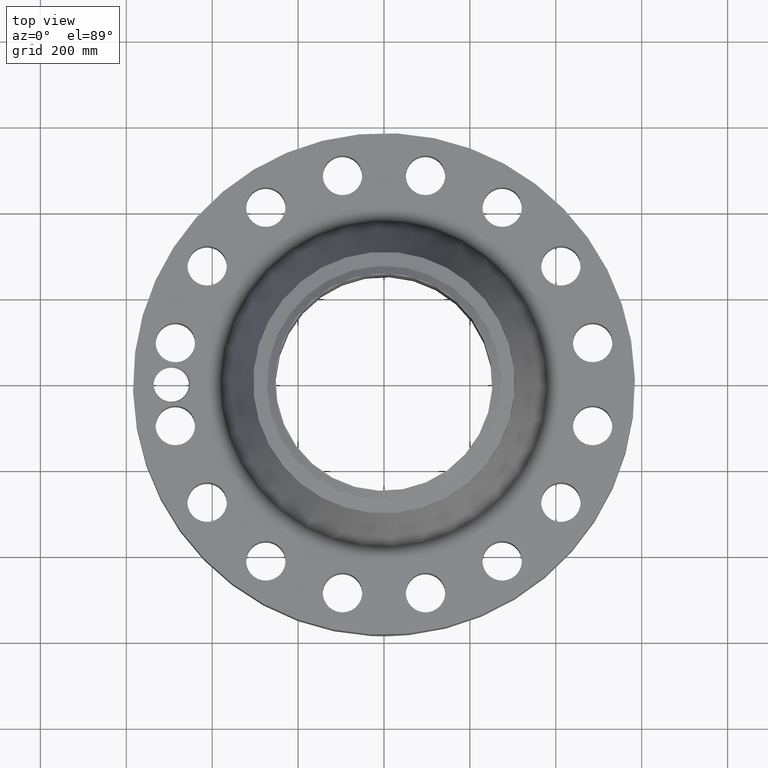
[diagram: clean part render]
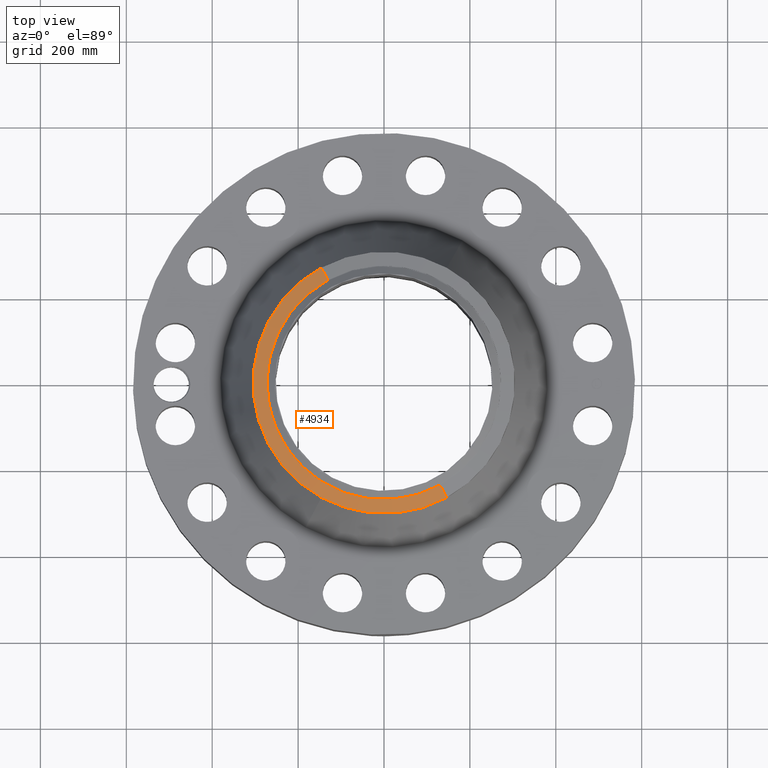
[diagram: same view with one face highlighted and labeled with its STEP entity id]
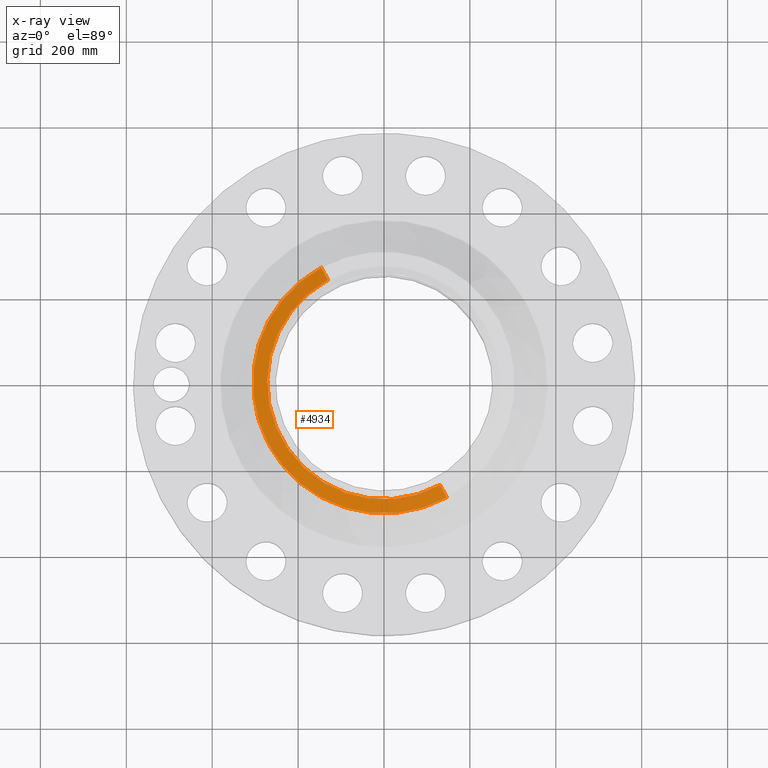
[diagram: x-ray of the same camera — body ghosted, the highlighted face saturated]
A machine part, top view. The second image highlights one B-rep face of the part: STEP entity #4934.
The next image is the same camera in x-ray: the body ghosted, the highlighted face saturated — about 0% of this face is hidden behind the body in this view.
In plain terms, the highlighted conical surface has half-angle 80 deg.
Its self-contained STEP definition (entity closure, byte-faithful):
#3746=AXIS2_PLACEMENT_3D('Circle Axis2P3D',#3744,#3745,$) ;
#3759=AXIS2_PLACEMENT_3D('Circle Axis2P3D',#3757,#3758,$) ;
#4893=AXIS2_PLACEMENT_3D('Cone Axis2P3D',#4890,#4891,#4892) ;
#4924=AXIS2_PLACEMENT_3D('Circle Axis2P3D',#4922,#4923,$) ;
#3727=CARTESIAN_POINT('Vertex',(-5.75310646327,-10.5309907427,15.5047465941)) ;
#3741=CARTESIAN_POINT('Vertex',(5.75310646327,-10.5309907427,15.5047465941)) ;
#3744=CARTESIAN_POINT('Axis2P3D Location',(0.,0.,15.5047465941)) ;
#3757=CARTESIAN_POINT('Axis2P3D Location',(0.,0.,15.5047465941)) ;
#3761=CARTESIAN_POINT('Vertex',(-5.75310646327,10.5309907427,15.5047465941)) ;
#4890=CARTESIAN_POINT('Axis2P3D Location',(0.,0.,15.7314160193)) ;
#4895=CARTESIAN_POINT('Line Origine',(-5.44495421449,9.96692183492,15.6180813067)) ;
#4899=CARTESIAN_POINT('Vertex',(-5.13680196571,9.40285292711,15.7314160193)) ;
#4906=CARTESIAN_POINT('Vertex',(5.13680196571,-9.40285292711,15.7314160193)) ;
#4909=CARTESIAN_POINT('Line Origine',(5.44495421449,-9.96692183492,15.6180813067)) ;
#4922=CARTESIAN_POINT('Axis2P3D Location',(0.,0.,15.7314160193)) ;
#3745=DIRECTION('Axis2P3D Direction',(0.,0.,-0.0393700787402)) ;
#3758=DIRECTION('Axis2P3D Direction',(0.,0.,-0.0393700787402)) ;
#4891=DIRECTION('Axis2P3D Direction',(-0.,-0.,-0.0393700787402)) ;
#4892=DIRECTION('Axis2P3D XDirection',(0.0188750212049,-0.0345504945626,0.)) ;
#4896=DIRECTION('Vector Direction',(-0.0185882672208,0.0340255949157,-0.00683654242783)) ;
#4910=DIRECTION('Vector Direction',(0.0185882672208,-0.0340255949157,-0.00683654242783)) ;
#4923=DIRECTION('Axis2P3D Direction',(0.,0.,-0.0393700787402)) ;
#4897=VECTOR('Line Direction',#4896,0.0393700787402) ;
#4911=VECTOR('Line Direction',#4910,0.0393700787402) ;
#4928=ORIENTED_EDGE('',*,*,#4913,.F.) ;
#4929=ORIENTED_EDGE('',*,*,#4926,.F.) ;
#4930=ORIENTED_EDGE('',*,*,#4901,.T.) ;
#4931=ORIENTED_EDGE('',*,*,#3763,.T.) ;
#4932=ORIENTED_EDGE('',*,*,#3748,.F.) ;
#4934=ADVANCED_FACE('PartBody',(#4933),#4894,.T.) ;
#3747=CIRCLE('generated circle',#3746,12.) ;
#3760=CIRCLE('generated circle',#3759,12.) ;
#4925=CIRCLE('generated circle',#4924,10.71449381) ;
#4894=CONICAL_SURFACE('Cone',#4893,10.71449381,1.3962634016) ;
#3748=EDGE_CURVE('',#3742,#3728,#3747,.T.) ;
#3763=EDGE_CURVE('',#3762,#3728,#3760,.F.) ;
#4901=EDGE_CURVE('',#4900,#3762,#4898,.T.) ;
#4913=EDGE_CURVE('',#4907,#3742,#4912,.T.) ;
#4926=EDGE_CURVE('',#4900,#4907,#4925,.F.) ;
#4927=EDGE_LOOP('',(#4928,#4929,#4930,#4931,#4932)) ;
#4933=FACE_OUTER_BOUND('',#4927,.T.) ;
#4898=LINE('Line',#4895,#4897) ;
#4912=LINE('Line',#4909,#4911) ;
#3728=VERTEX_POINT('',#3727) ;
#3742=VERTEX_POINT('',#3741) ;
#3762=VERTEX_POINT('',#3761) ;
#4900=VERTEX_POINT('',#4899) ;
#4907=VERTEX_POINT('',#4906) ;